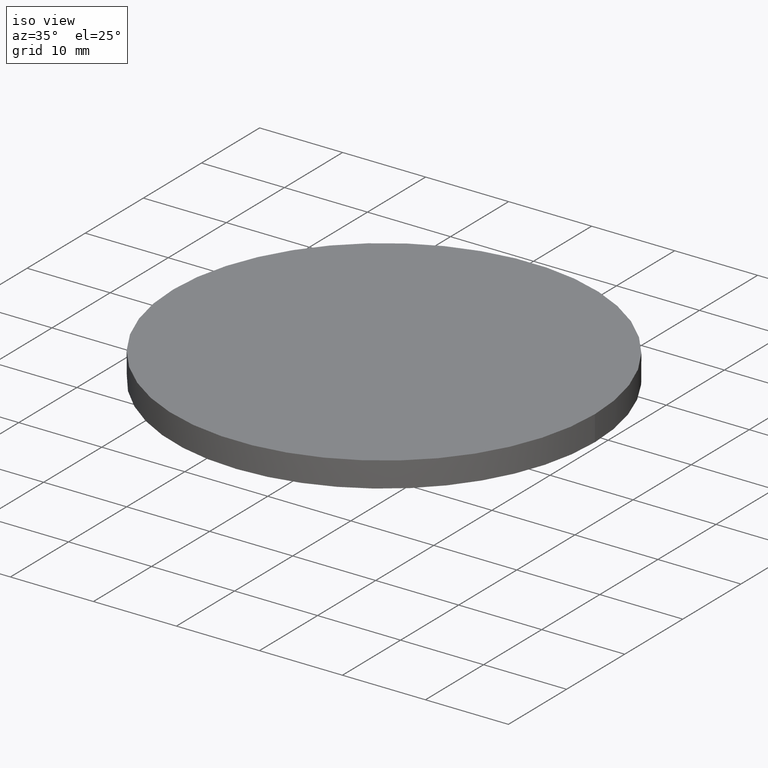
[diagram: clean part render]
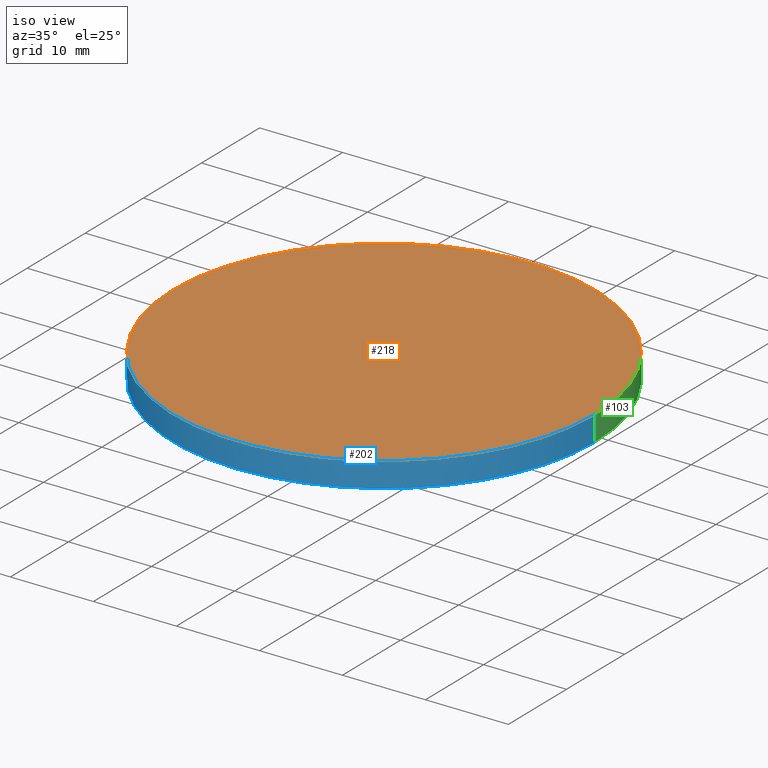
[diagram: same view with three faces highlighted in distinct colors, each labeled with its STEP entity id]
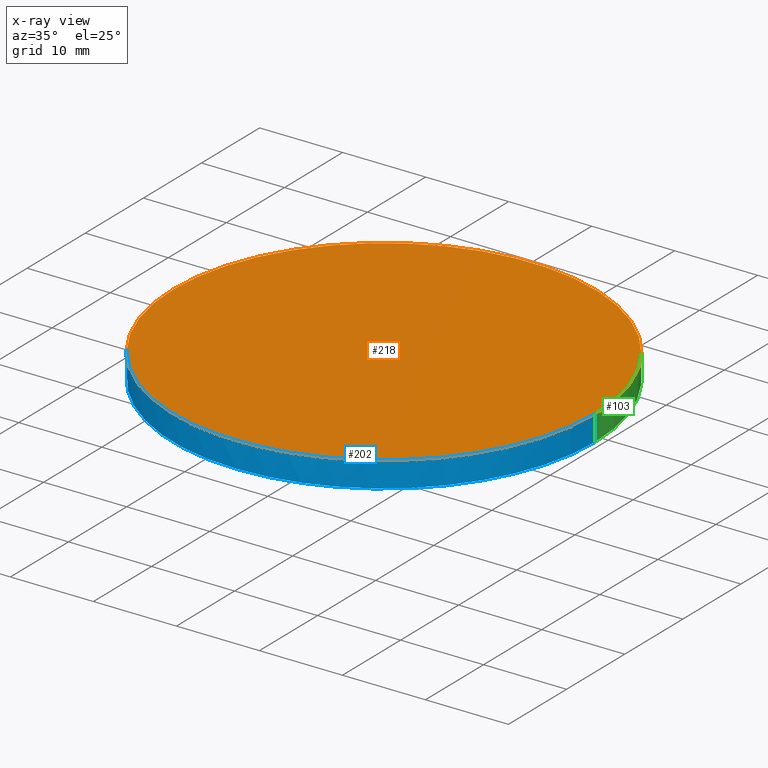
[diagram: x-ray of the same camera — body ghosted, the three highlighted faces saturated]
A machine part, iso view with three faces highlighted in distinct colors.
The next image is the same camera in x-ray (body ghosted, the three faces saturated) — at least one of them is partly hidden behind the body in this view.
Their STEP definitions:

[orange] entity #218 — the highlighted planar face has unit normal (0, 0, 1).
#7 = CARTESIAN_POINT ( 'NONE',  ( 25.39999999999999900, 4.884981308350691100E-015, 7.000000000000000000 ) ) ;
#11 = DIRECTION ( 'NONE',  ( 1.000000000000000000, 0.0000000000000000000, 0.0000000000000000000 ) ) ;
#25 = AXIS2_PLACEMENT_3D ( 'NONE', #114, #176, #11 ) ;
#30 = VERTEX_POINT ( 'NONE', #39 ) ;
#33 = CIRCLE ( 'NONE', #91, 25.39999999999999900 ) ;
#35 = ORIENTED_EDGE ( 'NONE', *, *, #177, .F. ) ;
#39 = CARTESIAN_POINT ( 'NONE',  ( -25.39999999999999900, 7.995584178184967200E-015, 7.000000000000000000 ) ) ;
#51 = CARTESIAN_POINT ( 'NONE',  ( 9.992007221626412800E-016, 4.884981308350691100E-015, 7.000000000000000000 ) ) ;
#66 = EDGE_CURVE ( 'NONE', #231, #30, #146, .T. ) ;
#70 = DIRECTION ( 'NONE',  ( -0.0000000000000000000, -0.0000000000000000000, -1.000000000000000000 ) ) ;
#85 = ORIENTED_EDGE ( 'NONE', *, *, #66, .F. ) ;
#91 = AXIS2_PLACEMENT_3D ( 'NONE', #51, #70, #144 ) ;
#92 = CARTESIAN_POINT ( 'NONE',  ( 0.0000000000000000000, 52.02000000000000300, 7.000000000000000000 ) ) ;
#113 = EDGE_LOOP ( 'NONE', ( #85, #35 ) ) ;
#114 = CARTESIAN_POINT ( 'NONE',  ( 9.992007221626412800E-016, 4.884981308350691100E-015, 7.000000000000000000 ) ) ;
#144 = DIRECTION ( 'NONE',  ( 1.000000000000000000, 0.0000000000000000000, 0.0000000000000000000 ) ) ;
#146 = CIRCLE ( 'NONE', #25, 25.39999999999999900 ) ;
#152 = FACE_OUTER_BOUND ( 'NONE', #113, .T. ) ;
#160 = AXIS2_PLACEMENT_3D ( 'NONE', #92, #196, #201 ) ;
#176 = DIRECTION ( 'NONE',  ( -0.0000000000000000000, -0.0000000000000000000, -1.000000000000000000 ) ) ;
#177 = EDGE_CURVE ( 'NONE', #30, #231, #33, .T. ) ;
#196 = DIRECTION ( 'NONE',  ( 0.0000000000000000000, 0.0000000000000000000, 1.000000000000000000 ) ) ;
#201 = DIRECTION ( 'NONE',  ( 1.000000000000000000, 0.0000000000000000000, -0.0000000000000000000 ) ) ;
#206 = PLANE ( 'NONE',  #160 ) ;
#218 = ADVANCED_FACE ( 'NONE', ( #152 ), #206, .T. ) ;
#231 = VERTEX_POINT ( 'NONE', #7 ) ;

[blue] entity #202 — the highlighted cylindrical surface (partial cylindrical patch) has radius 25.4 mm, axis along (0, 0, 1).
#7 = CARTESIAN_POINT ( 'NONE',  ( 25.39999999999999900, 4.884981308350691100E-015, 7.000000000000000000 ) ) ;
#9 = VECTOR ( 'NONE', #182, 1000.000000000000000 ) ;
#11 = DIRECTION ( 'NONE',  ( 1.000000000000000000, 0.0000000000000000000, 0.0000000000000000000 ) ) ;
#13 = CARTESIAN_POINT ( 'NONE',  ( -25.39999999999999900, 7.995584178184967200E-015, 3.949545170682999400 ) ) ;
#17 = DIRECTION ( 'NONE',  ( -0.0000000000000000000, -0.0000000000000000000, -1.000000000000000000 ) ) ;
#25 = AXIS2_PLACEMENT_3D ( 'NONE', #114, #176, #11 ) ;
#30 = VERTEX_POINT ( 'NONE', #39 ) ;
#36 = EDGE_CURVE ( 'NONE', #128, #231, #56, .T. ) ;
#37 = CYLINDRICAL_SURFACE ( 'NONE', #215, 25.39999999999999900 ) ;
#39 = CARTESIAN_POINT ( 'NONE',  ( -25.39999999999999900, 7.995584178184967200E-015, 7.000000000000000000 ) ) ;
#46 = LINE ( 'NONE', #13, #9 ) ;
#52 = DIRECTION ( 'NONE',  ( 1.000000000000000000, 0.0000000000000000000, 0.0000000000000000000 ) ) ;
#54 = EDGE_CURVE ( 'NONE', #115, #79, #75, .T. ) ;
#56 = LINE ( 'NONE', #155, #181 ) ;
#60 = FACE_OUTER_BOUND ( 'NONE', #198, .T. ) ;
#66 = EDGE_CURVE ( 'NONE', #231, #30, #146, .T. ) ;
#67 = CARTESIAN_POINT ( 'NONE',  ( 3.275035724031239300E-014, -25.39999999999999100, 3.949545170682996700 ) ) ;
#69 = ORIENTED_EDGE ( 'NONE', *, *, #66, .T. ) ;
#71 = AXIS2_PLACEMENT_3D ( 'NONE', #157, #229, #134 ) ;
#75 = CIRCLE ( 'NONE', #71, 25.39999999999999900 ) ;
#79 = VERTEX_POINT ( 'NONE', #99 ) ;
#99 = CARTESIAN_POINT ( 'NONE',  ( -25.39999999999999900, 7.995584178184967200E-015, 3.949545170682999400 ) ) ;
#102 = DIRECTION ( 'NONE',  ( 1.000000000000000000, 0.0000000000000000000, 0.0000000000000000000 ) ) ;
#114 = CARTESIAN_POINT ( 'NONE',  ( 9.992007221626412800E-016, 4.884981308350691100E-015, 7.000000000000000000 ) ) ;
#115 = VERTEX_POINT ( 'NONE', #67 ) ;
#123 = DIRECTION ( 'NONE',  ( 0.0000000000000000000, 0.0000000000000000000, 1.000000000000000000 ) ) ;
#128 = VERTEX_POINT ( 'NONE', #194 ) ;
#133 = DIRECTION ( 'NONE',  ( 0.0000000000000000000, 0.0000000000000000000, 1.000000000000000000 ) ) ;
#134 = DIRECTION ( 'NONE',  ( 1.000000000000000000, 0.0000000000000000000, 0.0000000000000000000 ) ) ;
#135 = ORIENTED_EDGE ( 'NONE', *, *, #145, .F. ) ;
#142 = ORIENTED_EDGE ( 'NONE', *, *, #217, .F. ) ;
#145 = EDGE_CURVE ( 'NONE', #79, #30, #46, .T. ) ;
#146 = CIRCLE ( 'NONE', #25, 25.39999999999999900 ) ;
#148 = ORIENTED_EDGE ( 'NONE', *, *, #54, .F. ) ;
#155 = CARTESIAN_POINT ( 'NONE',  ( 25.39999999999999900, 4.884981308350691100E-015, 3.949545170682999400 ) ) ;
#157 = CARTESIAN_POINT ( 'NONE',  ( 9.992007221626412800E-016, 4.884981308350691100E-015, 3.949545170682999400 ) ) ;
#163 = CARTESIAN_POINT ( 'NONE',  ( 9.992007221626412800E-016, 4.884981308350691100E-015, 3.949545170682999400 ) ) ;
#166 = ORIENTED_EDGE ( 'NONE', *, *, #36, .T. ) ;
#176 = DIRECTION ( 'NONE',  ( -0.0000000000000000000, -0.0000000000000000000, -1.000000000000000000 ) ) ;
#181 = VECTOR ( 'NONE', #133, 1000.000000000000000 ) ;
#182 = DIRECTION ( 'NONE',  ( 0.0000000000000000000, 0.0000000000000000000, 1.000000000000000000 ) ) ;
#194 = CARTESIAN_POINT ( 'NONE',  ( 25.39999999999999900, 4.884981308350691100E-015, 3.949545170682999400 ) ) ;
#198 = EDGE_LOOP ( 'NONE', ( #135, #148, #142, #166, #69 ) ) ;
#202 = ADVANCED_FACE ( 'NONE', ( #60 ), #37, .T. ) ;
#203 = CIRCLE ( 'NONE', #226, 25.39999999999999900 ) ;
#215 = AXIS2_PLACEMENT_3D ( 'NONE', #221, #123, #102 ) ;
#217 = EDGE_CURVE ( 'NONE', #128, #115, #203, .T. ) ;
#221 = CARTESIAN_POINT ( 'NONE',  ( 9.992007221626412800E-016, 4.884981308350691100E-015, 3.949545170682999400 ) ) ;
#226 = AXIS2_PLACEMENT_3D ( 'NONE', #163, #17, #52 ) ;
#229 = DIRECTION ( 'NONE',  ( -0.0000000000000000000, -0.0000000000000000000, -1.000000000000000000 ) ) ;
#231 = VERTEX_POINT ( 'NONE', #7 ) ;

[green] entity #103 — the highlighted cylindrical surface (partial cylindrical patch) has radius 25.4 mm, axis along (0, 0, 1).
#7 = CARTESIAN_POINT ( 'NONE',  ( 25.39999999999999900, 4.884981308350691100E-015, 7.000000000000000000 ) ) ;
#9 = VECTOR ( 'NONE', #182, 1000.000000000000000 ) ;
#13 = CARTESIAN_POINT ( 'NONE',  ( -25.39999999999999900, 7.995584178184967200E-015, 3.949545170682999400 ) ) ;
#16 = ORIENTED_EDGE ( 'NONE', *, *, #186, .F. ) ;
#30 = VERTEX_POINT ( 'NONE', #39 ) ;
#33 = CIRCLE ( 'NONE', #91, 25.39999999999999900 ) ;
#34 = EDGE_LOOP ( 'NONE', ( #16, #175, #110, #63, #76 ) ) ;
#36 = EDGE_CURVE ( 'NONE', #128, #231, #56, .T. ) ;
#39 = CARTESIAN_POINT ( 'NONE',  ( -25.39999999999999900, 7.995584178184967200E-015, 7.000000000000000000 ) ) ;
#40 = DIRECTION ( 'NONE',  ( -0.0000000000000000000, -0.0000000000000000000, -1.000000000000000000 ) ) ;
#41 = EDGE_CURVE ( 'NONE', #93, #128, #219, .T. ) ;
#46 = LINE ( 'NONE', #13, #9 ) ;
#47 = CARTESIAN_POINT ( 'NONE',  ( 9.992007221626412800E-016, 4.884981308350691100E-015, 3.949545170682999400 ) ) ;
#51 = CARTESIAN_POINT ( 'NONE',  ( 9.992007221626412800E-016, 4.884981308350691100E-015, 7.000000000000000000 ) ) ;
#55 = CARTESIAN_POINT ( 'NONE',  ( 9.992007221626412800E-016, 4.884981308350691100E-015, 3.949545170682999400 ) ) ;
#56 = LINE ( 'NONE', #155, #181 ) ;
#63 = ORIENTED_EDGE ( 'NONE', *, *, #36, .F. ) ;
#64 = DIRECTION ( 'NONE',  ( 1.000000000000000000, -1.776356839400250500E-015, 0.0000000000000000000 ) ) ;
#70 = DIRECTION ( 'NONE',  ( -0.0000000000000000000, -0.0000000000000000000, -1.000000000000000000 ) ) ;
#76 = ORIENTED_EDGE ( 'NONE', *, *, #41, .F. ) ;
#79 = VERTEX_POINT ( 'NONE', #99 ) ;
#88 = DIRECTION ( 'NONE',  ( 1.000000000000000000, 8.881784197001252300E-016, 0.0000000000000000000 ) ) ;
#91 = AXIS2_PLACEMENT_3D ( 'NONE', #51, #70, #144 ) ;
#93 = VERTEX_POINT ( 'NONE', #214 ) ;
#99 = CARTESIAN_POINT ( 'NONE',  ( -25.39999999999999900, 7.995584178184967200E-015, 3.949545170682999400 ) ) ;
#103 = ADVANCED_FACE ( 'NONE', ( #168 ), #104, .T. ) ;
#104 = CYLINDRICAL_SURFACE ( 'NONE', #223, 25.39999999999999900 ) ;
#110 = ORIENTED_EDGE ( 'NONE', *, *, #177, .T. ) ;
#117 = DIRECTION ( 'NONE',  ( 0.0000000000000000000, 0.0000000000000000000, 1.000000000000000000 ) ) ;
#119 = DIRECTION ( 'NONE',  ( -0.0000000000000000000, -0.0000000000000000000, -1.000000000000000000 ) ) ;
#126 = AXIS2_PLACEMENT_3D ( 'NONE', #55, #119, #88 ) ;
#128 = VERTEX_POINT ( 'NONE', #194 ) ;
#133 = DIRECTION ( 'NONE',  ( 0.0000000000000000000, 0.0000000000000000000, 1.000000000000000000 ) ) ;
#139 = CIRCLE ( 'NONE', #126, 25.39999999999999900 ) ;
#144 = DIRECTION ( 'NONE',  ( 1.000000000000000000, 0.0000000000000000000, 0.0000000000000000000 ) ) ;
#145 = EDGE_CURVE ( 'NONE', #79, #30, #46, .T. ) ;
#155 = CARTESIAN_POINT ( 'NONE',  ( 25.39999999999999900, 4.884981308350691100E-015, 3.949545170682999400 ) ) ;
#156 = CARTESIAN_POINT ( 'NONE',  ( 9.992007221626412800E-016, 4.884981308350691100E-015, 3.949545170682999400 ) ) ;
#168 = FACE_OUTER_BOUND ( 'NONE', #34, .T. ) ;
#175 = ORIENTED_EDGE ( 'NONE', *, *, #145, .T. ) ;
#177 = EDGE_CURVE ( 'NONE', #30, #231, #33, .T. ) ;
#181 = VECTOR ( 'NONE', #133, 1000.000000000000000 ) ;
#182 = DIRECTION ( 'NONE',  ( 0.0000000000000000000, 0.0000000000000000000, 1.000000000000000000 ) ) ;
#186 = EDGE_CURVE ( 'NONE', #79, #93, #139, .T. ) ;
#194 = CARTESIAN_POINT ( 'NONE',  ( 25.39999999999999900, 4.884981308350691100E-015, 3.949545170682999400 ) ) ;
#211 = AXIS2_PLACEMENT_3D ( 'NONE', #156, #40, #64 ) ;
#214 = CARTESIAN_POINT ( 'NONE',  ( 1.510330810484473600E-014, 25.39999999999999900, 3.949545170682996700 ) ) ;
#219 = CIRCLE ( 'NONE', #211, 25.39999999999999900 ) ;
#223 = AXIS2_PLACEMENT_3D ( 'NONE', #47, #117, #233 ) ;
#231 = VERTEX_POINT ( 'NONE', #7 ) ;
#233 = DIRECTION ( 'NONE',  ( 1.000000000000000000, 0.0000000000000000000, 0.0000000000000000000 ) ) ;